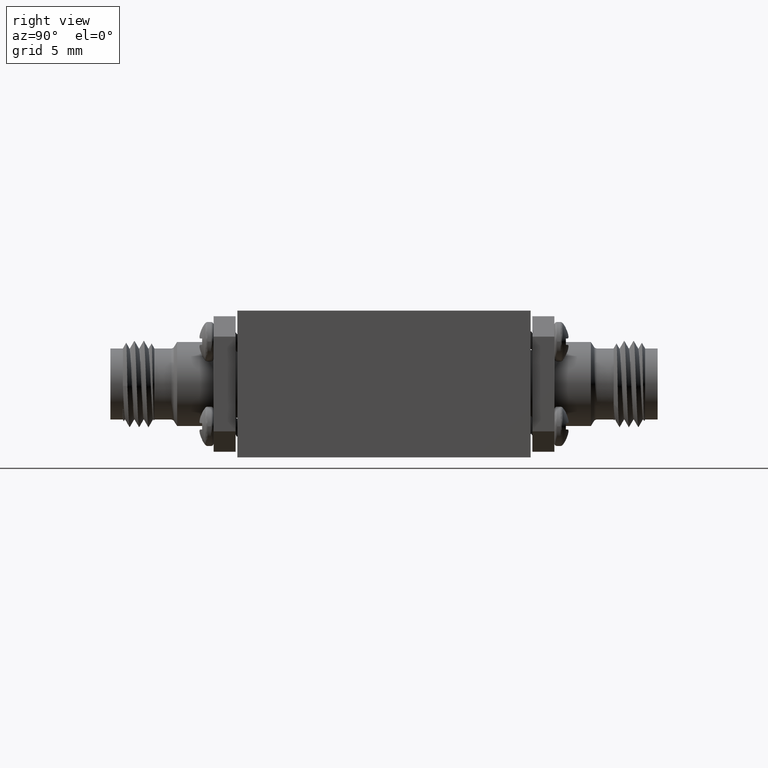
[diagram: clean part render]
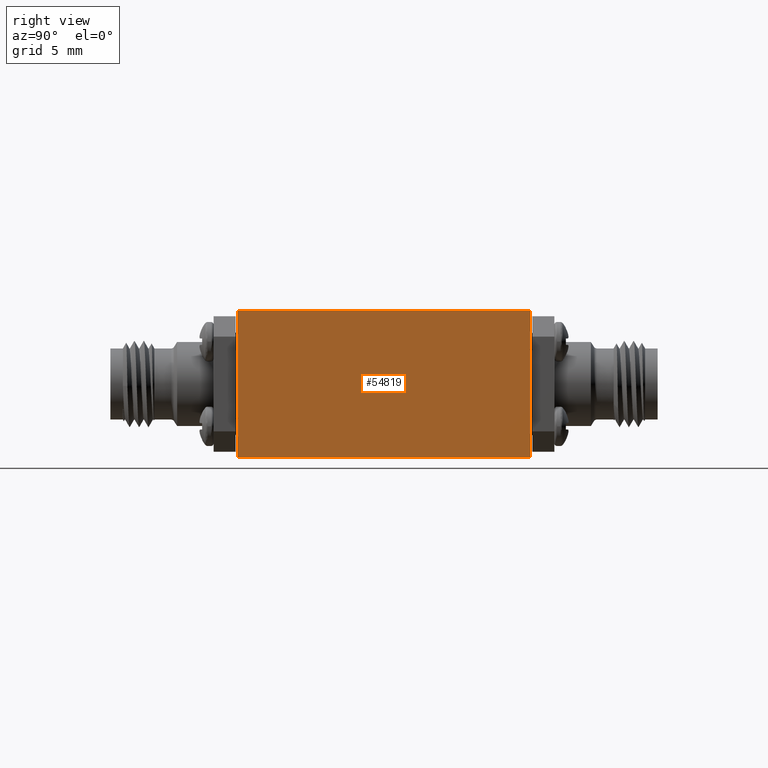
[diagram: same view with one face highlighted and labeled with its STEP entity id]
A machine part, right view. The second image highlights one B-rep face of the part: STEP entity #54819.
In plain terms, the highlighted planar face has unit normal (-1, 0, 0).
Its self-contained STEP definition (entity closure, byte-faithful):
#992 = CARTESIAN_POINT ( 'NONE',  ( 0.6830708661417321800, 0.4330708661417322900, 0.4330708661417322900 ) ) ;
#2699 = CARTESIAN_POINT ( 'NONE',  ( 0.6830708661417321800, -0.4330708661417323500, 0.0000000000000000000 ) ) ;
#7244 = DIRECTION ( 'NONE',  ( -0.0000000000000000000, -0.0000000000000000000, -1.000000000000000000 ) ) ;
#7612 = EDGE_CURVE ( 'NONE', #14700, #34503, #40856, .T. ) ;
#11166 = AXIS2_PLACEMENT_3D ( 'NONE', #78268, #16007, #21504 ) ;
#12838 = CARTESIAN_POINT ( 'NONE',  ( 0.6830708661417321800, -0.4330708661417323500, 0.4330708661417322900 ) ) ;
#13162 = VECTOR ( 'NONE', #7244, 39.37007874015748100 ) ;
#14700 = VERTEX_POINT ( 'NONE', #56593 ) ;
#16007 = DIRECTION ( 'NONE',  ( -1.000000000000000000, 0.0000000000000000000, 0.0000000000000000000 ) ) ;
#17273 = EDGE_CURVE ( 'NONE', #14700, #73932, #33634, .T. ) ;
#17444 = VECTOR ( 'NONE', #18282, 39.37007874015748100 ) ;
#18282 = DIRECTION ( 'NONE',  ( 0.0000000000000000000, 1.000000000000000000, 0.0000000000000000000 ) ) ;
#19763 = VERTEX_POINT ( 'NONE', #55003 ) ;
#21504 = DIRECTION ( 'NONE',  ( 0.0000000000000000000, 0.0000000000000000000, 1.000000000000000000 ) ) ;
#21716 = EDGE_CURVE ( 'NONE', #73932, #19763, #46796, .T. ) ;
#27762 = DIRECTION ( 'NONE',  ( 0.0000000000000000000, 1.000000000000000000, 0.0000000000000000000 ) ) ;
#32640 = LINE ( 'NONE', #992, #13162 ) ;
#33634 = LINE ( 'NONE', #33938, #65826 ) ;
#33938 = CARTESIAN_POINT ( 'NONE',  ( 0.6830708661417321800, -0.4330708661417323500, 0.4330708661417322900 ) ) ;
#34363 = CARTESIAN_POINT ( 'NONE',  ( 0.6830708661417321800, -0.4330708661417323500, 0.0000000000000000000 ) ) ;
#34503 = VERTEX_POINT ( 'NONE', #34791 ) ;
#34791 = CARTESIAN_POINT ( 'NONE',  ( 0.6830708661417321800, 0.4330708661417322900, 0.4330708661417322900 ) ) ;
#40856 = LINE ( 'NONE', #12838, #17444 ) ;
#46796 = LINE ( 'NONE', #2699, #72235 ) ;
#50930 = EDGE_LOOP ( 'NONE', ( #65080, #60370, #76081, #58970 ) ) ;
#54819 = ADVANCED_FACE ( 'NONE', ( #75516 ), #65939, .F. ) ;
#55003 = CARTESIAN_POINT ( 'NONE',  ( 0.6830708661417321800, 0.4330708661417322900, 0.0000000000000000000 ) ) ;
#56593 = CARTESIAN_POINT ( 'NONE',  ( 0.6830708661417321800, -0.4330708661417323500, 0.4330708661417322900 ) ) ;
#58970 = ORIENTED_EDGE ( 'NONE', *, *, #17273, .T. ) ;
#60370 = ORIENTED_EDGE ( 'NONE', *, *, #65408, .F. ) ;
#65080 = ORIENTED_EDGE ( 'NONE', *, *, #21716, .T. ) ;
#65408 = EDGE_CURVE ( 'NONE', #34503, #19763, #32640, .T. ) ;
#65826 = VECTOR ( 'NONE', #77917, 39.37007874015748100 ) ;
#65939 = PLANE ( 'NONE',  #11166 ) ;
#72235 = VECTOR ( 'NONE', #27762, 39.37007874015748100 ) ;
#73932 = VERTEX_POINT ( 'NONE', #34363 ) ;
#75516 = FACE_OUTER_BOUND ( 'NONE', #50930, .T. ) ;
#76081 = ORIENTED_EDGE ( 'NONE', *, *, #7612, .F. ) ;
#77917 = DIRECTION ( 'NONE',  ( -0.0000000000000000000, -0.0000000000000000000, -1.000000000000000000 ) ) ;
#78268 = CARTESIAN_POINT ( 'NONE',  ( 0.6830708661417321800, -0.4330708661417323500, 0.4330708661417322900 ) ) ;